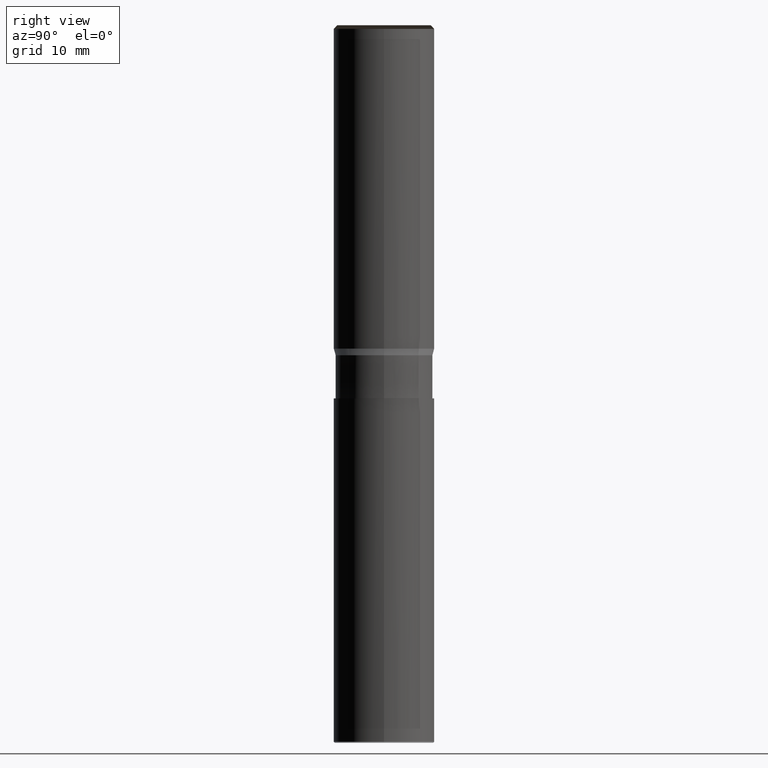
[diagram: clean part render]
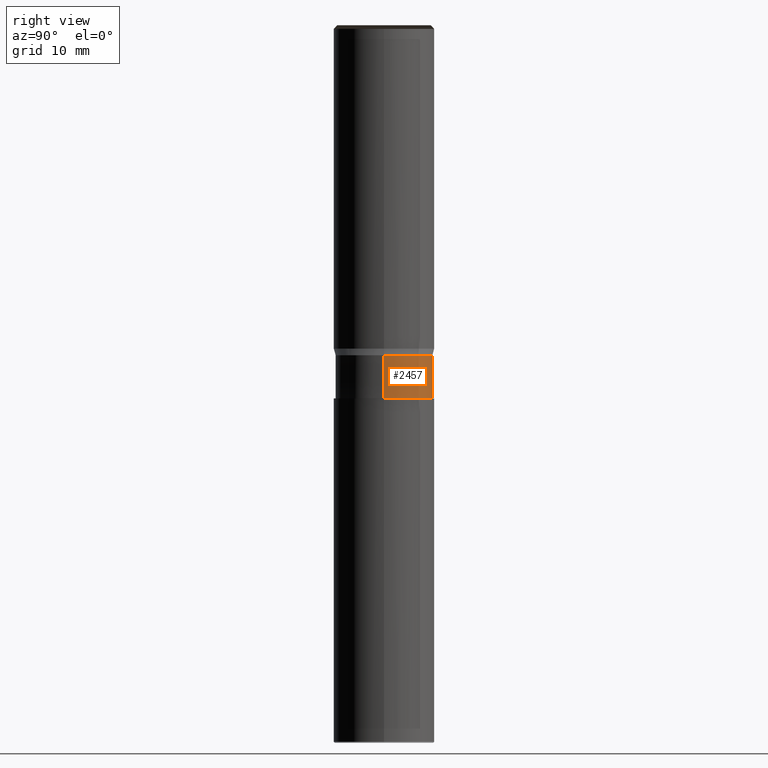
[diagram: same view with one face highlighted and labeled with its STEP entity id]
A machine part, right view. The second image highlights one B-rep face of the part: STEP entity #2457.
In plain terms, the highlighted face is a freeform B-spline surface patch.
Its self-contained STEP definition (entity closure, byte-faithful):
#2226=CARTESIAN_POINT('',(6.75,0.0,-6.93300989));
#2227=CARTESIAN_POINT('',(6.75,6.75,-6.93300989));
#2228=CARTESIAN_POINT('',(0.0,6.75,-6.93300989));
#2229=CARTESIAN_POINT('',(-6.75,6.75,-6.93300989));
#2230=CARTESIAN_POINT('',(-6.75,0.0,-6.93300989));
#2231=CARTESIAN_POINT('',(6.75,0.0,-0.93300989));
#2232=CARTESIAN_POINT('',(6.75,6.75,-0.93300989));
#2233=CARTESIAN_POINT('',(0.0,6.75,-0.93300989));
#2234=CARTESIAN_POINT('',(-6.75,6.75,-0.93300989));
#2235=CARTESIAN_POINT('',(-6.75,0.0,-0.93300989));
#2438=(
BOUNDED_SURFACE()
B_SPLINE_SURFACE(1,2,(
(#2226,#2227,#2228,#2229,#2230),
(#2231,#2232,#2233,#2234,#2235)
), .UNSPECIFIED.,.F.,.F.,.F.)
B_SPLINE_SURFACE_WITH_KNOTS((2,2),(3,2,3),(
0.0,1.0),(
0.0,0.5,1.0), .UNSPECIFIED.)
GEOMETRIC_REPRESENTATION_ITEM()
RATIONAL_B_SPLINE_SURFACE(((1.0,0.707106781187,1.0,0.707106781187,1.0),
(1.0,0.707106781187,1.0,0.707106781187,1.0)
))
REPRESENTATION_ITEM('')
SURFACE()
);
#2439=(
BOUNDED_CURVE()
B_SPLINE_CURVE(2,(#2231,#2232,#2233,#2234,#2235),.UNSPECIFIED.,.F.,.F.)
B_SPLINE_CURVE_WITH_KNOTS((3,2,3),
(0.0,0.5,1.0),.UNSPECIFIED.)
CURVE()
GEOMETRIC_REPRESENTATION_ITEM()
RATIONAL_B_SPLINE_CURVE((1.0,0.707106781187,1.0,0.707106781187,1.0))
REPRESENTATION_ITEM('')
);
#2440=(
BOUNDED_CURVE()
B_SPLINE_CURVE(1,(#2235,#2230),.UNSPECIFIED.,.F.,.F.)
B_SPLINE_CURVE_WITH_KNOTS((2,2),
(0.0,1.0),.UNSPECIFIED.)
CURVE()
GEOMETRIC_REPRESENTATION_ITEM()
RATIONAL_B_SPLINE_CURVE((1.0,1.0))
REPRESENTATION_ITEM('')
);
#2441=(
BOUNDED_CURVE()
B_SPLINE_CURVE(2,(#2230,#2229,#2228,#2227,#2226),.UNSPECIFIED.,.F.,.F.)
B_SPLINE_CURVE_WITH_KNOTS((3,2,3),
(0.0,0.5,1.0),.UNSPECIFIED.)
CURVE()
GEOMETRIC_REPRESENTATION_ITEM()
RATIONAL_B_SPLINE_CURVE((1.0,0.707106781187,1.0,0.707106781187,1.0))
REPRESENTATION_ITEM('')
);
#2442=(
BOUNDED_CURVE()
B_SPLINE_CURVE(1,(#2226,#2231),.UNSPECIFIED.,.F.,.F.)
B_SPLINE_CURVE_WITH_KNOTS((2,2),
(0.0,1.0),.UNSPECIFIED.)
CURVE()
GEOMETRIC_REPRESENTATION_ITEM()
RATIONAL_B_SPLINE_CURVE((1.0,1.0))
REPRESENTATION_ITEM('')
);
#2443=VERTEX_POINT('',#2226);
#2444=VERTEX_POINT('',#2230);
#2445=VERTEX_POINT('',#2231);
#2446=VERTEX_POINT('',#2235);
#2447=EDGE_CURVE('',#2445,#2446,#2439,.T.);
#2448=EDGE_CURVE('',#2446,#2444,#2440,.T.);
#2449=EDGE_CURVE('',#2444,#2443,#2441,.T.);
#2450=EDGE_CURVE('',#2443,#2445,#2442,.T.);
#2451=ORIENTED_EDGE('',*,*,#2447,.T.);
#2452=ORIENTED_EDGE('',*,*,#2448,.T.);
#2453=ORIENTED_EDGE('',*,*,#2449,.T.);
#2454=ORIENTED_EDGE('',*,*,#2450,.T.);
#2455=EDGE_LOOP('',(#2451,#2452,#2453,#2454));
#2456=FACE_OUTER_BOUND('',#2455,.T.);
#2457=ADVANCED_FACE('',(#2456),#2438,.T.);